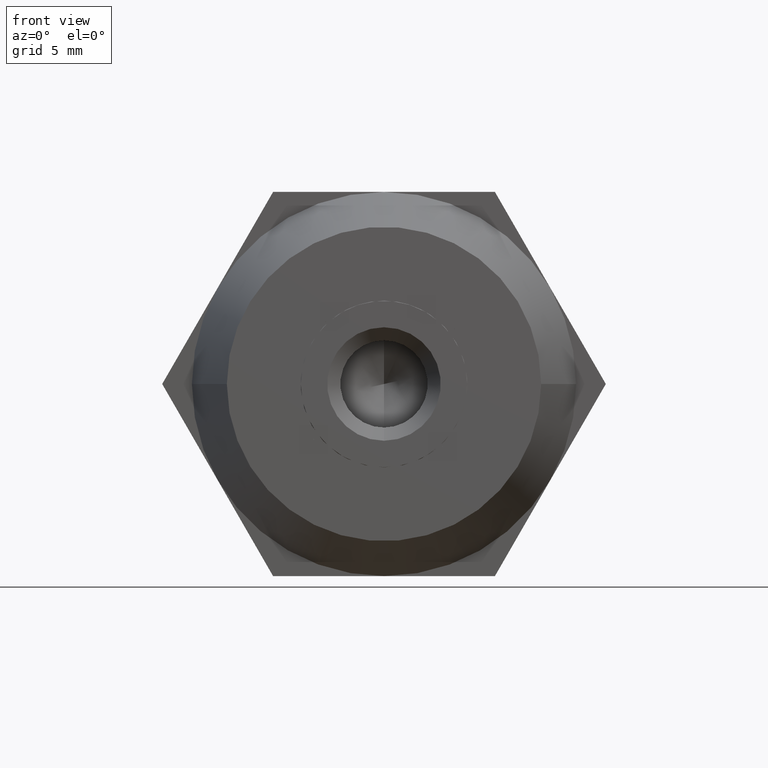
[diagram: clean part render]
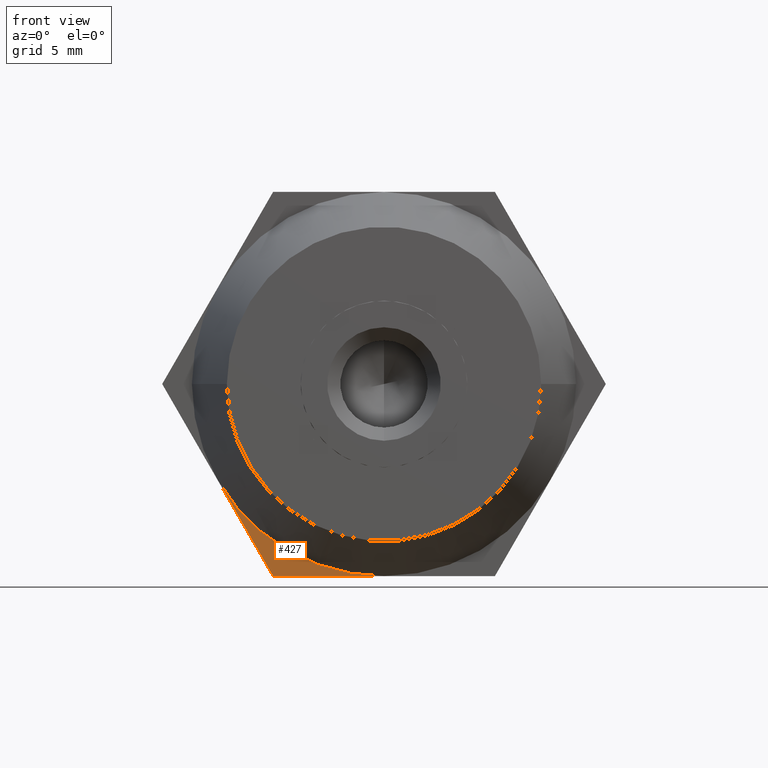
[diagram: same view with one face highlighted and labeled with its STEP entity id]
A machine part, front view. The second image highlights one B-rep face of the part: STEP entity #427.
In plain terms, the highlighted planar face has unit normal (0, 1, 0).
Its self-contained STEP definition (entity closure, byte-faithful):
#379 = DIRECTION ( 'NONE',  ( 0.0000000000000000000, 0.0000000000000000000, 1.000000000000000000 ) ) ;
#408 = VERTEX_POINT ( 'NONE', #1746 ) ;
#427 = ADVANCED_FACE ( 'NONE', ( #960 ), #3322, .F. ) ;
#575 = AXIS2_PLACEMENT_3D ( 'NONE', #846, #875, #1780 ) ;
#789 = DIRECTION ( 'NONE',  ( -1.000000000000000000, 0.0000000000000000000, 0.0000000000000000000 ) ) ;
#790 = EDGE_LOOP ( 'NONE', ( #3529, #3494, #3218 ) ) ;
#846 = CARTESIAN_POINT ( 'NONE',  ( 0.0000000000000000000, -2.500000000000000000, 0.0000000000000000000 ) ) ;
#875 = DIRECTION ( 'NONE',  ( 0.0000000000000000000, 1.000000000000000000, 0.0000000000000000000 ) ) ;
#899 = AXIS2_PLACEMENT_3D ( 'NONE', #3654, #2178, #379 ) ;
#960 = FACE_OUTER_BOUND ( 'NONE', #790, .T. ) ;
#1000 = VECTOR ( 'NONE', #789, 1000.000000000000000 ) ;
#1257 = CARTESIAN_POINT ( 'NONE',  ( -9.526279441628821200, -2.500000000000000000, -5.500000000000000000 ) ) ;
#1450 = VERTEX_POINT ( 'NONE', #2769 ) ;
#1476 = LINE ( 'NONE', #2336, #1000 ) ;
#1744 = CARTESIAN_POINT ( 'NONE',  ( -6.350852961085879900, -2.500000000000000000, -11.00000000000000000 ) ) ;
#1746 = CARTESIAN_POINT ( 'NONE',  ( 1.836970198721030000E-015, -2.500000000000000000, -11.00000000000000000 ) ) ;
#1780 = DIRECTION ( 'NONE',  ( 0.0000000000000000000, 0.0000000000000000000, 1.000000000000000000 ) ) ;
#1875 = EDGE_CURVE ( 'NONE', #408, #3647, #3012, .T. ) ;
#2001 = VECTOR ( 'NONE', #3559, 1000.000000000000000 ) ;
#2178 = DIRECTION ( 'NONE',  ( 0.0000000000000000000, 1.000000000000000000, 0.0000000000000000000 ) ) ;
#2335 = LINE ( 'NONE', #1744, #2001 ) ;
#2336 = CARTESIAN_POINT ( 'NONE',  ( 6.350852961085879900, -2.500000000000000000, -11.00000000000000000 ) ) ;
#2480 = EDGE_CURVE ( 'NONE', #408, #1450, #1476, .T. ) ;
#2769 = CARTESIAN_POINT ( 'NONE',  ( -6.350852961085879900, -2.500000000000000000, -11.00000000000000000 ) ) ;
#3012 = CIRCLE ( 'NONE', #899, 11.00000000000000000 ) ;
#3218 = ORIENTED_EDGE ( 'NONE', *, *, #3537, .F. ) ;
#3322 = PLANE ( 'NONE',  #575 ) ;
#3494 = ORIENTED_EDGE ( 'NONE', *, *, #1875, .T. ) ;
#3529 = ORIENTED_EDGE ( 'NONE', *, *, #2480, .F. ) ;
#3537 = EDGE_CURVE ( 'NONE', #1450, #3647, #2335, .T. ) ;
#3559 = DIRECTION ( 'NONE',  ( -0.4999999999999998900, 0.0000000000000000000, 0.8660254037844387100 ) ) ;
#3647 = VERTEX_POINT ( 'NONE', #1257 ) ;
#3654 = CARTESIAN_POINT ( 'NONE',  ( 1.836970198721030000E-015, -2.500000000000000000, 2.694222958124174500E-016 ) ) ;